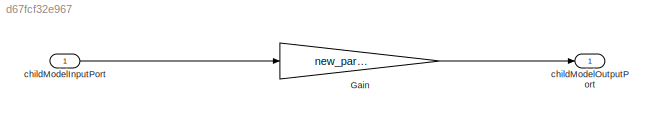
MODEL slx_d67fcf32e967
KIND model
BLOCK [Gain] Gain
  Gain = new_parameter
  LockScale = on
  OutDataTypeStr = Inherit: Inherit via internal rule
  ParamDataTypeStr = Inherit: Inherit from 'Gain'
  SaturateOnIntegerOverflow = off
BLOCK [Inport] childModelInputPort
  IconDisplay = Port number
BLOCK [Outport] childModelOutputPort
  IconDisplay = Port number
LINE Gain:1 -> childModelOutputPort:1
LINE childModelInputPort:1 -> Gain:1
